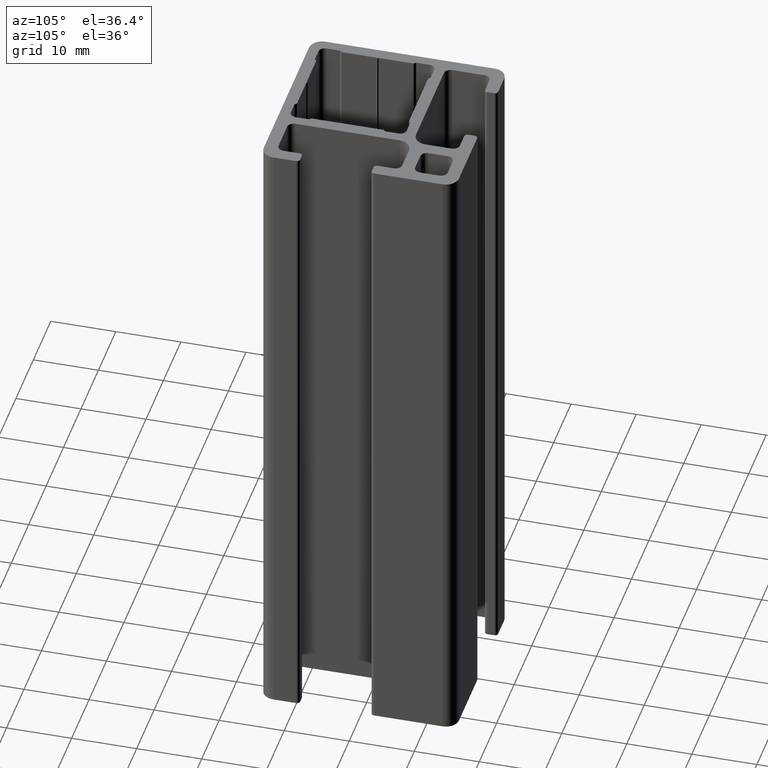
[diagram: clean part render]
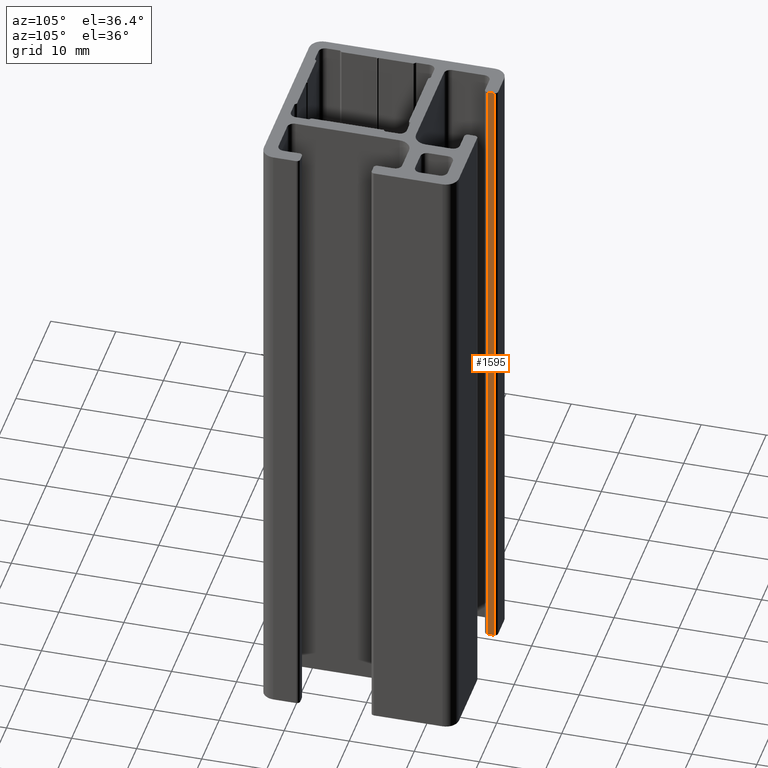
[diagram: same view with one face highlighted and labeled with its STEP entity id]
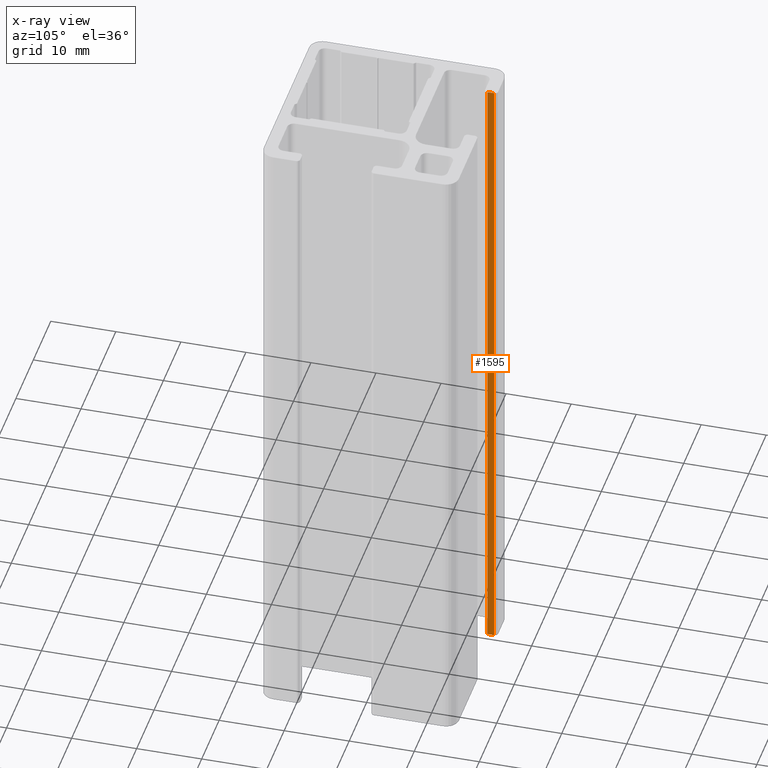
[diagram: x-ray of the same camera — body ghosted, the highlighted face saturated]
A machine part, auxiliary view. The second image highlights one B-rep face of the part: STEP entity #1595.
The next image is the same camera in x-ray: the body ghosted, the highlighted face saturated — about 0% of this face is hidden behind the body in this view.
In plain terms, the highlighted planar face has unit normal (-1, -0, 0).
Its self-contained STEP definition (entity closure, byte-faithful):
#60=PLANE('',#1719);
#133=FACE_OUTER_BOUND('',#213,.T.);
#213=EDGE_LOOP('',(#1285,#1286,#1287,#1288));
#380=LINE('',#2581,#558);
#382=LINE('',#2587,#560);
#383=LINE('',#2589,#561);
#384=LINE('',#2590,#562);
#558=VECTOR('',#2104,100.);
#560=VECTOR('',#2110,0.999999999999999);
#561=VECTOR('',#2111,100.);
#562=VECTOR('',#2112,0.999999999999999);
#773=VERTEX_POINT('',#2577);
#775=VERTEX_POINT('',#2580);
#777=VERTEX_POINT('',#2586);
#778=VERTEX_POINT('',#2588);
#989=EDGE_CURVE('',#775,#773,#380,.T.);
#992=EDGE_CURVE('',#777,#773,#382,.T.);
#993=EDGE_CURVE('',#778,#777,#383,.T.);
#994=EDGE_CURVE('',#775,#778,#384,.T.);
#1285=ORIENTED_EDGE('',*,*,#992,.F.);
#1286=ORIENTED_EDGE('',*,*,#993,.F.);
#1287=ORIENTED_EDGE('',*,*,#994,.F.);
#1288=ORIENTED_EDGE('',*,*,#989,.T.);
#1595=ADVANCED_FACE('',(#133),#60,.F.);
#1719=AXIS2_PLACEMENT_3D('',#2585,#2108,#2109);
#2104=DIRECTION('',(0.,0.,1.));
#2108=DIRECTION('center_axis',(-1.,-1.11022302462516E-15,0.));
#2109=DIRECTION('ref_axis',(1.06581410364015E-15,-1.,0.));
#2110=DIRECTION('',(-1.11022302462516E-15,1.,0.));
#2111=DIRECTION('',(0.,0.,1.));
#2112=DIRECTION('',(1.11022302462516E-15,-1.,0.));
#2577=CARTESIAN_POINT('',(-9.,14.5,100.));
#2580=CARTESIAN_POINT('',(-9.,14.5,0.));
#2581=CARTESIAN_POINT('',(-9.,14.5,0.));
#2585=CARTESIAN_POINT('Origin',(-9.,14.5,0.));
#2586=CARTESIAN_POINT('',(-9.,13.5,100.));
#2587=CARTESIAN_POINT('',(-8.99999999999999,7.25000000019473,100.));
#2588=CARTESIAN_POINT('',(-9.,13.5,0.));
#2589=CARTESIAN_POINT('',(-9.,13.5,0.));
#2590=CARTESIAN_POINT('',(-8.99999999999999,7.25000000019473,0.));